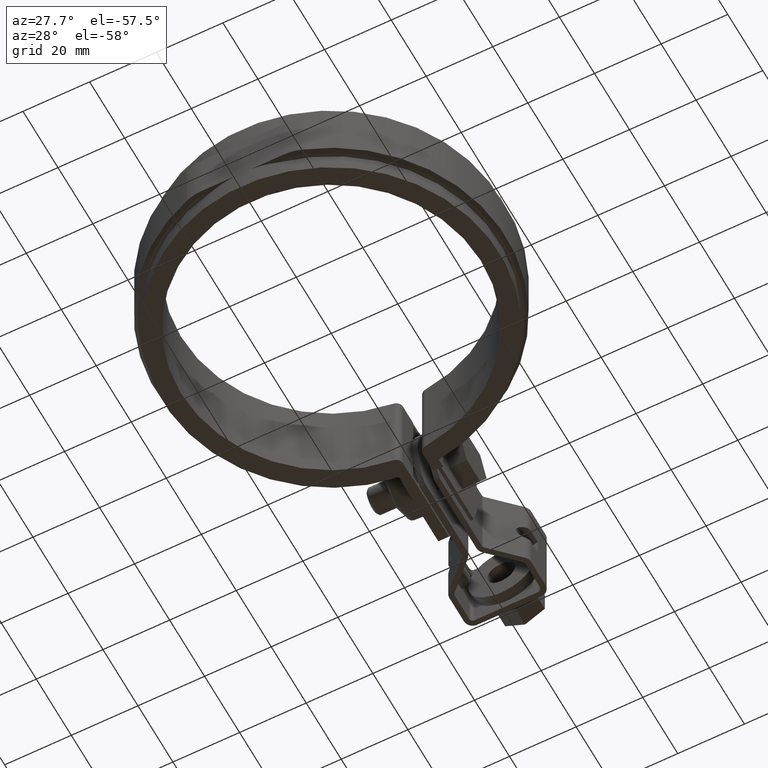
[diagram: clean part render]
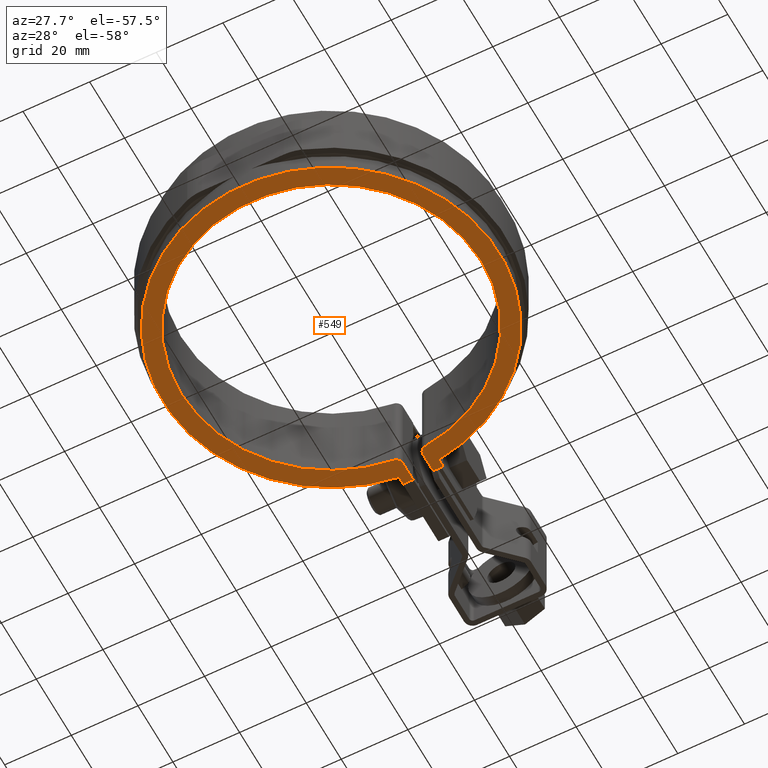
[diagram: same view with one face highlighted and labeled with its STEP entity id]
A machine part, auxiliary view. The second image highlights one B-rep face of the part: STEP entity #549.
In plain terms, the highlighted planar face has unit normal (0, 0, 1).
Its self-contained STEP definition (entity closure, byte-faithful):
#549 = ADVANCED_FACE( '', ( #1009 ), #1010, .F. );
#1009 = FACE_OUTER_BOUND( '', #2338, .T. );
#1010 = PLANE( '', #2339 );
#2338 = EDGE_LOOP( '', ( #4872, #4873, #4874, #4875, #4876, #4877, #4878, #4879, #4880, #4881 ) );
#2339 = AXIS2_PLACEMENT_3D( '', #4882, #4883, #4884 );
#4872 = ORIENTED_EDGE( '', *, *, #7639, .F. );
#4873 = ORIENTED_EDGE( '', *, *, #7653, .T. );
#4874 = ORIENTED_EDGE( '', *, *, #7654, .T. );
#4875 = ORIENTED_EDGE( '', *, *, #7655, .T. );
#4876 = ORIENTED_EDGE( '', *, *, #7656, .T. );
#4877 = ORIENTED_EDGE( '', *, *, #7657, .T. );
#4878 = ORIENTED_EDGE( '', *, *, #7658, .F. );
#4879 = ORIENTED_EDGE( '', *, *, #7659, .F. );
#4880 = ORIENTED_EDGE( '', *, *, #7650, .F. );
#4881 = ORIENTED_EDGE( '', *, *, #7602, .F. );
#4882 = CARTESIAN_POINT( '', ( -5.24039279849732, 48.0518761955218, -14.0000000000000 ) );
#4883 = DIRECTION( '', ( 0.000000000000000, 0.000000000000000, 1.00000000000000 ) );
#4884 = DIRECTION( '', ( -0.141414143857009, 0.989950523974400, 0.000000000000000 ) );
#7602 = EDGE_CURVE( '', #8816, #8817, #8818, .T. );
#7639 = EDGE_CURVE( '', #8878, #8816, #8879, .T. );
#7650 = EDGE_CURVE( '', #8817, #8897, #8898, .T. );
#7653 = EDGE_CURVE( '', #8878, #8902, #8903, .T. );
#7654 = EDGE_CURVE( '', #8902, #8904, #8905, .T. );
#7655 = EDGE_CURVE( '', #8904, #8906, #8907, .T. );
#7656 = EDGE_CURVE( '', #8906, #8908, #8909, .T. );
#7657 = EDGE_CURVE( '', #8908, #8910, #8911, .T. );
#7658 = EDGE_CURVE( '', #8912, #8910, #8913, .T. );
#7659 = EDGE_CURVE( '', #8897, #8912, #8914, .T. );
#8816 = VERTEX_POINT( '', #12531 );
#8817 = VERTEX_POINT( '', #12532 );
#8818 = CIRCLE( '', #12533, 2.00000000000000 );
#8878 = VERTEX_POINT( '', #12693 );
#8879 = LINE( '', #12694, #12695 );
#8897 = VERTEX_POINT( '', #12721 );
#8898 = CIRCLE( '', #12722, 45.0000000000000 );
#8902 = VERTEX_POINT( '', #12727 );
#8903 = LINE( '', #12728, #12729 );
#8904 = VERTEX_POINT( '', #12730 );
#8905 = LINE( '', #12731, #12732 );
#8906 = VERTEX_POINT( '', #12733 );
#8907 = CIRCLE( '', #12734, 50.5000000000000 );
#8908 = VERTEX_POINT( '', #12735 );
#8909 = LINE( '', #12736, #12737 );
#8910 = VERTEX_POINT( '', #12738 );
#8911 = LINE( '', #12739, #12740 );
#8912 = VERTEX_POINT( '', #12741 );
#8913 = LINE( '', #12742, #12743 );
#8914 = CIRCLE( '', #12744, 2.00000000000000 );
#12531 = CARTESIAN_POINT( '', ( 3.00000000000000, 46.7332857821917, -14.0000000000000 ) );
#12532 = CARTESIAN_POINT( '', ( 4.78723404255318, 44.7446353233750, -14.0000000000000 ) );
#12533 = AXIS2_PLACEMENT_3D( '', #14720, #14721, #14722 );
#12693 = CARTESIAN_POINT( '', ( 2.99999999999996, 52.5500000000000, -14.0000000000000 ) );
#12694 = CARTESIAN_POINT( '', ( 3.00000000000000, 52.5500000000000, -14.0000000000000 ) );
#12695 = VECTOR( '', #14751, 1000.00000000000 );
#12721 = CARTESIAN_POINT( '', ( -4.78723404255264, 44.7446353233751, -14.0000000000000 ) );
#12722 = AXIS2_PLACEMENT_3D( '', #14766, #14767, #14768 );
#12727 = CARTESIAN_POINT( '', ( 5.99999999999998, 52.5500000000000, -14.0000000000000 ) );
#12728 = CARTESIAN_POINT( '', ( 4.99999999999999, 52.5500000000000, -14.0000000000000 ) );
#12729 = VECTOR( '', #14773, 1000.00000000000 );
#12730 = CARTESIAN_POINT( '', ( 6.00000000000000, 50.1422975141746, -14.0000000000000 ) );
#12731 = CARTESIAN_POINT( '', ( 6.00000000000000, 52.5500000000000, -14.0000000000000 ) );
#12732 = VECTOR( '', #14774, 1000.00000000000 );
#12733 = CARTESIAN_POINT( '', ( -5.99999999999999, 50.1422975141746, -14.0000000000000 ) );
#12734 = AXIS2_PLACEMENT_3D( '', #14775, #14776, #14777 );
#12735 = CARTESIAN_POINT( '', ( -6.00000000000000, 52.5500000000000, -14.0000000000000 ) );
#12736 = CARTESIAN_POINT( '', ( -6.00000000000000, 50.1422975141746, -14.0000000000000 ) );
#12737 = VECTOR( '', #14778, 1000.00000000000 );
#12738 = CARTESIAN_POINT( '', ( -2.99999999999934, 52.5500000000000, -14.0000000000000 ) );
#12739 = CARTESIAN_POINT( '', ( -5.99999999999999, 52.5500000000000, -14.0000000000000 ) );
#12740 = VECTOR( '', #14779, 1000.00000000000 );
#12741 = CARTESIAN_POINT( '', ( -2.99999999999934, 46.7332857821918, -14.0000000000000 ) );
#12742 = CARTESIAN_POINT( '', ( -2.99999999999934, 46.7332857821917, -14.0000000000000 ) );
#12743 = VECTOR( '', #14780, 1000.00000000000 );
#12744 = AXIS2_PLACEMENT_3D( '', #14781, #14782, #14783 );
#14720 = CARTESIAN_POINT( '', ( 5.00000000000000, 46.7332857821917, -14.0000000000000 ) );
#14721 = DIRECTION( '', ( 0.000000000000000, 0.000000000000000, 1.00000000000000 ) );
#14722 = DIRECTION( '', ( -1.00000000000000, -2.48412401759879E-015, 0.000000000000000 ) );
#14751 = DIRECTION( '', ( 2.77555756156289E-017, -1.00000000000000, 0.000000000000000 ) );
#14766 = CARTESIAN_POINT( '', ( 3.46944695195361E-015, 2.77555756156289E-014, -14.0000000000000 ) );
#14767 = DIRECTION( '', ( 0.000000000000000, 0.000000000000000, -1.00000000000000 ) );
#14768 = DIRECTION( '', ( 1.00000000000000, -2.77555756156289E-017, 0.000000000000000 ) );
#14773 = DIRECTION( '', ( 1.00000000000000, 0.000000000000000, 0.000000000000000 ) );
#14774 = DIRECTION( '', ( -5.55111512312578E-017, -1.00000000000000, 0.000000000000000 ) );
#14775 = CARTESIAN_POINT( '', ( 0.000000000000000, 6.93889390390723E-015, -14.0000000000000 ) );
#14776 = DIRECTION( '', ( 0.000000000000000, 0.000000000000000, -1.00000000000000 ) );
#14777 = DIRECTION( '', ( 1.00000000000000, -2.77555756156289E-017, 0.000000000000000 ) );
#14778 = DIRECTION( '', ( 5.55111512312578E-017, 1.00000000000000, 0.000000000000000 ) );
#14779 = DIRECTION( '', ( 1.00000000000000, 0.000000000000000, 0.000000000000000 ) );
#14780 = DIRECTION( '', ( -2.77555756156289E-017, 1.00000000000000, 0.000000000000000 ) );
#14781 = CARTESIAN_POINT( '', ( -4.99999999999934, 46.7332857821918, -14.0000000000000 ) );
#14782 = DIRECTION( '', ( 0.000000000000000, 0.000000000000000, 1.00000000000000 ) );
#14783 = DIRECTION( '', ( 1.00000000000000, 2.53963516883005E-015, 0.000000000000000 ) );